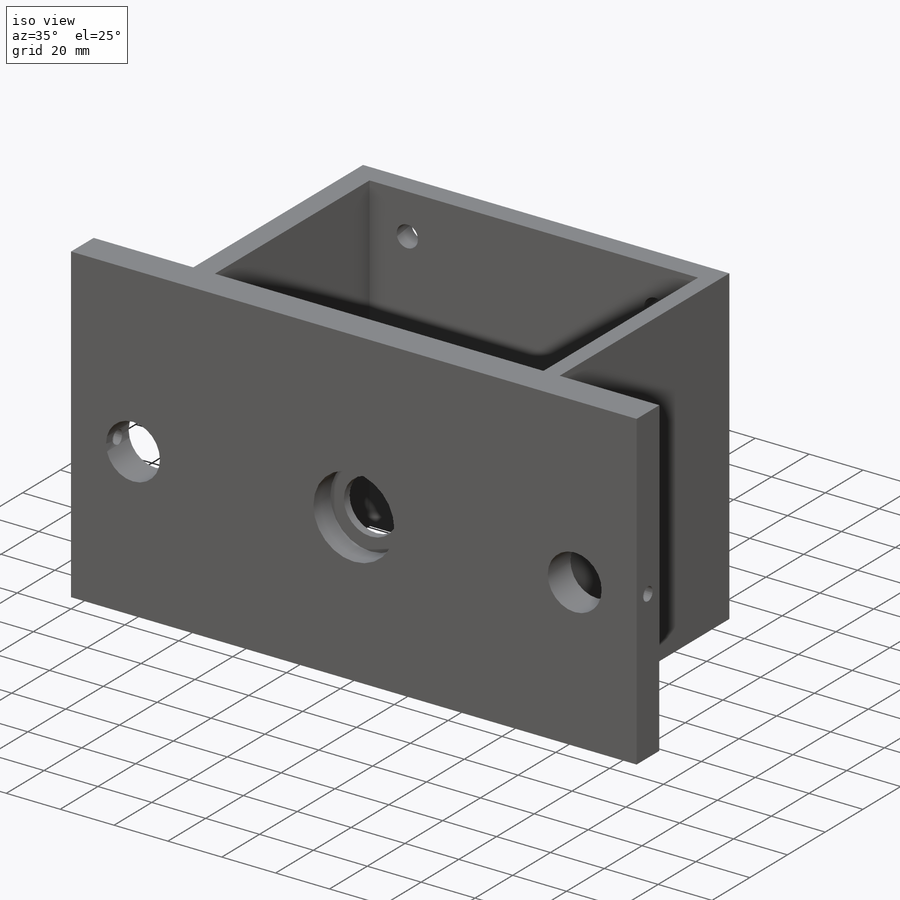
[diagram: iso view]
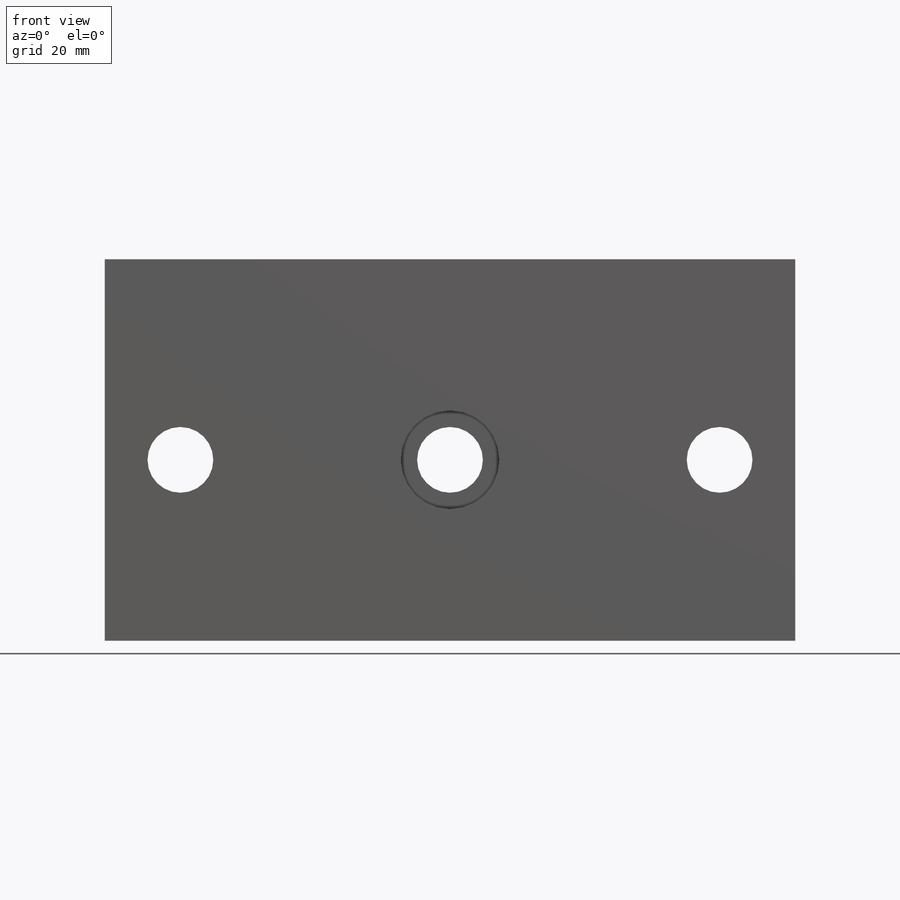
[diagram: front view]
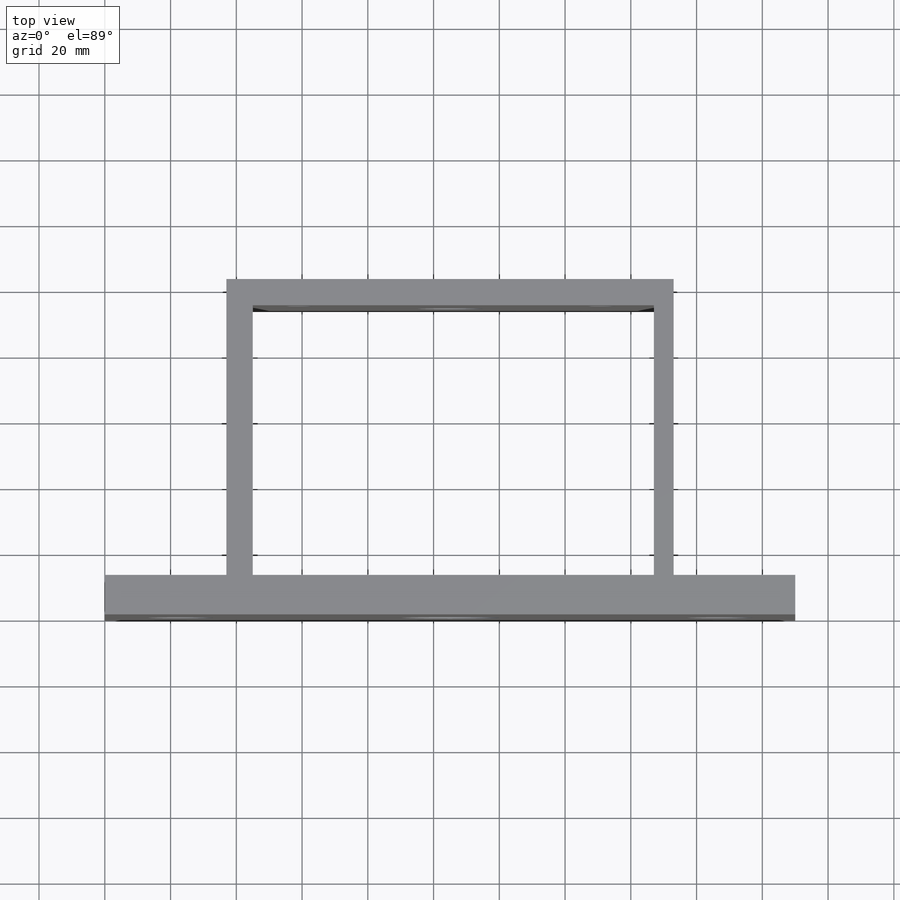
[diagram: top view]
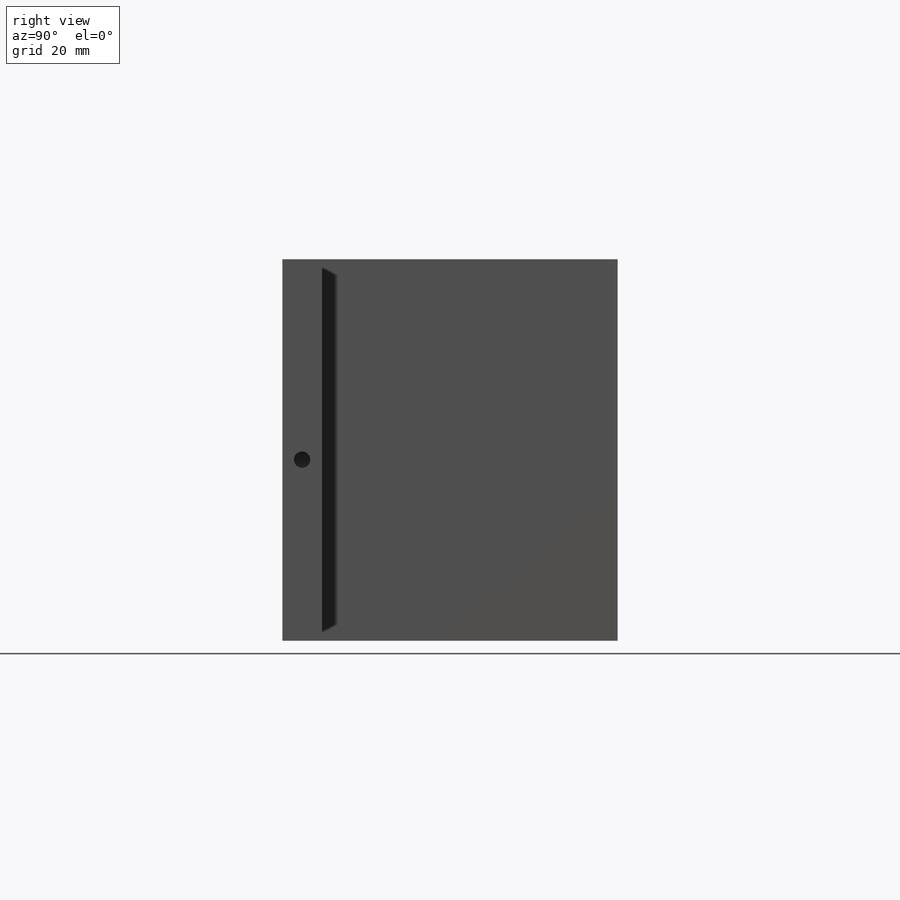
[diagram: right view]
SOLIDWORKS PART (.sldprt)
format: sldprt  version: not decoded by parser v0  size: 708,608 bytes
history: native  units: mm
features: sketch x15, cut_extrude x4, hole x4, extrude x3, material x1, pattern_circular x1 (+12 scaffold rows collapsed)
feature tree (40):
  scaffold x12  (default folders/planes/origin — collapsed)
  material  "Material <not specified>"
  sketch  "Sketch1"  dims[D1=12.0mm D2=210.0mm]
  extrude  "Boss-Extrude1"  Depth=116mm
  sketch  "Sketch2"  dims[D1=55.0mm D2=55.0mm D3=23.0mm D4=23.0mm]
  cut_extrude  "Cut-Extrude1"  [1 undecoded]
  hole  "Ø5.0mm Dowel Hole1"  Diameter=5mm Depth=25mm
  sketch  "Sketch4"  dims[D1=6.0mm D2=55.0mm]
  sketch  "Sketch3"  dims[hole-wizard template sketch: 47 standard entries collapsed; hole parameters kept: c15.Hole Depth=25.0mm c15.D3=~14.816244mm c15.Drill Angle=118.0deg]
  hole  "Ø5.0mm Dowel Hole2"  Diameter=5mm Depth=25mm
  sketch  "Sketch6"  dims[D1=55.0mm D2=6.0mm]
  sketch  "Sketch5"  dims[hole-wizard template sketch: 47 standard entries collapsed; hole parameters kept: c15.Hole Depth=25.0mm c15.D3=~14.816244mm c15.Drill Angle=118.0deg]
  sketch  "Sketch7"  dims[D1=20.0mm D2=55.0mm D3=105.0mm]
  hole  "Ø5.0mm Dowel Hole3"  Diameter=5mm Depth=25mm
  sketch  "Sketch10"  dims[D1=6.0mm D2=6.0mm D3=6.0mm D4=25.0mm D5=25.0mm D6=105.0mm]
  sketch  "Sketch9"  dims[hole-wizard template sketch: 47 standard entries collapsed; hole parameters kept: c15.Hole Depth=25.0mm c15.D3=~14.816244mm c15.Drill Angle=118.0deg]
  sketch  "Sketch11"  dims[D1=6.0mm D2=8.0mm D3=37.0mm D4=37.0mm]
  extrude  "Boss-Extrude2"  Depth=90mm
  sketch  "Sketch12"  dims[D1=8.0mm]
  extrude  "Boss-Extrude4"  [1 undecoded]
  cut_extrude  "Cut-Extrude3"  [1 undecoded]
  sketch  "Sketch13"  dims[D1=95.0mm]
  cut_extrude  "Cut-Extrude4"  Depth=6mm
  hole  "5/16 (0.3125) Diameter Hole1"  Diameter=7.9375mm Depth=12mm
  sketch  "Sketch15"  dims[c1.D1=65.0mm c1.D2=~79.916165mm c2.D2=45.0deg]
  sketch  "Sketch14"  dims[hole-wizard template sketch: 47 standard entries collapsed; hole parameters kept: c15.Hole Depth=12.0mm c15.D3=~14.816244mm c15.Drill Angle=118.0deg]
  pattern_circular  "CirPattern1"  Count=4 Angle=90deg
  sketch  "Sketch16"  dims[D1=30.0mm]
  cut_extrude  "Cut-Extrude5"  Depth=9mm
decode coverage: 24 of 27 modeling features carry decoded parameters
note: ~ marks probable driven/reference dimensions
note: 3 parameter values undecoded
summary: no parameter record found for 3 features; Diameter pulled from absorbed wizard sketch
note: suppression state not decoded; provenance and decode notes live in map.json
